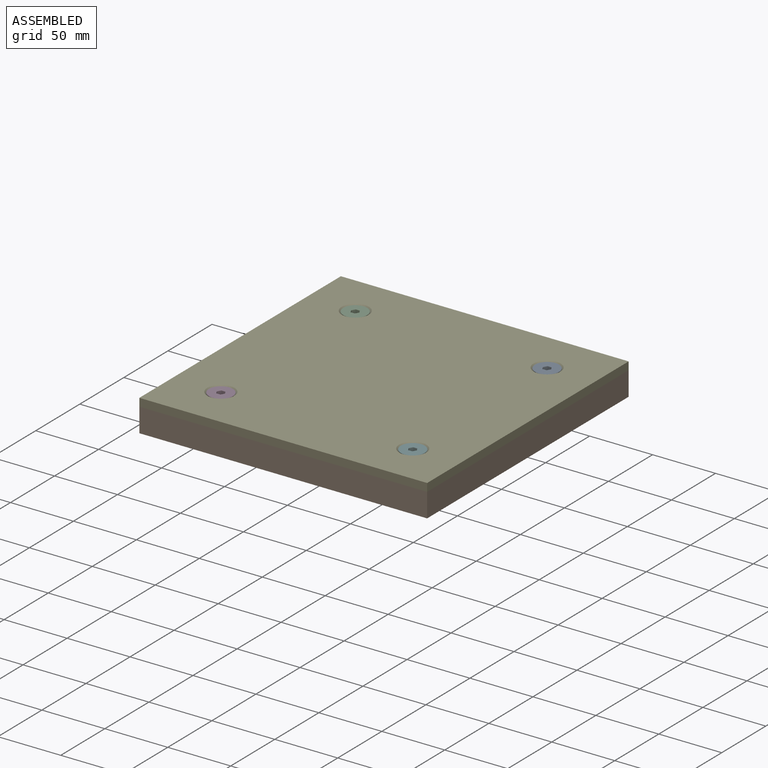
[diagram: assembled view]
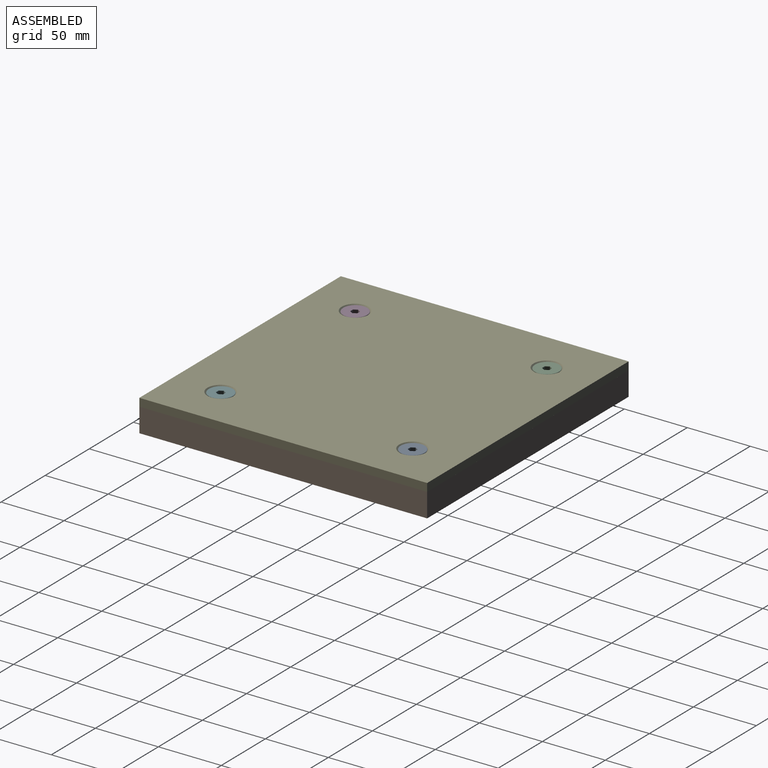
[diagram: assembled view, second angle]
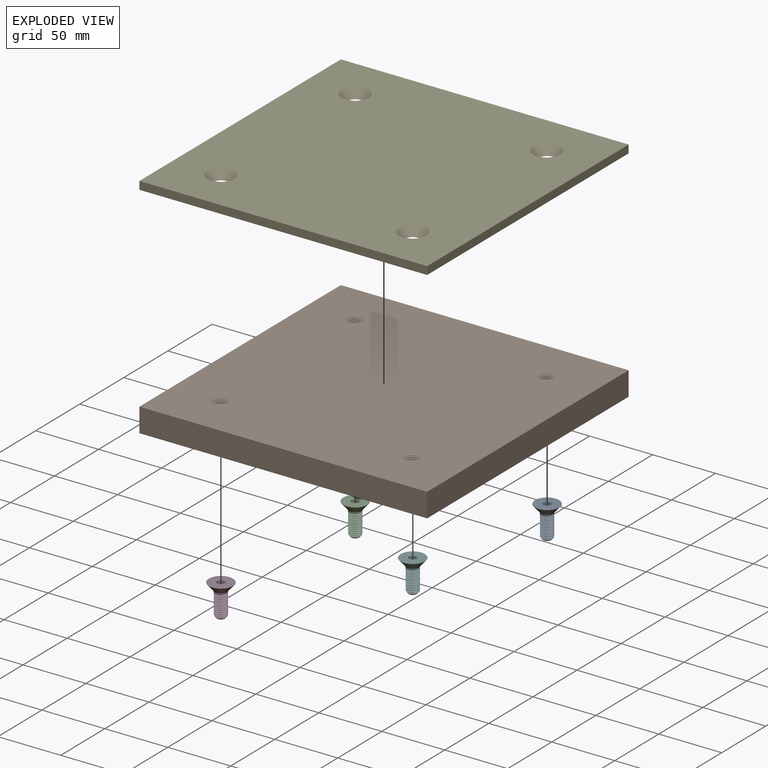
[diagram: exploded view]
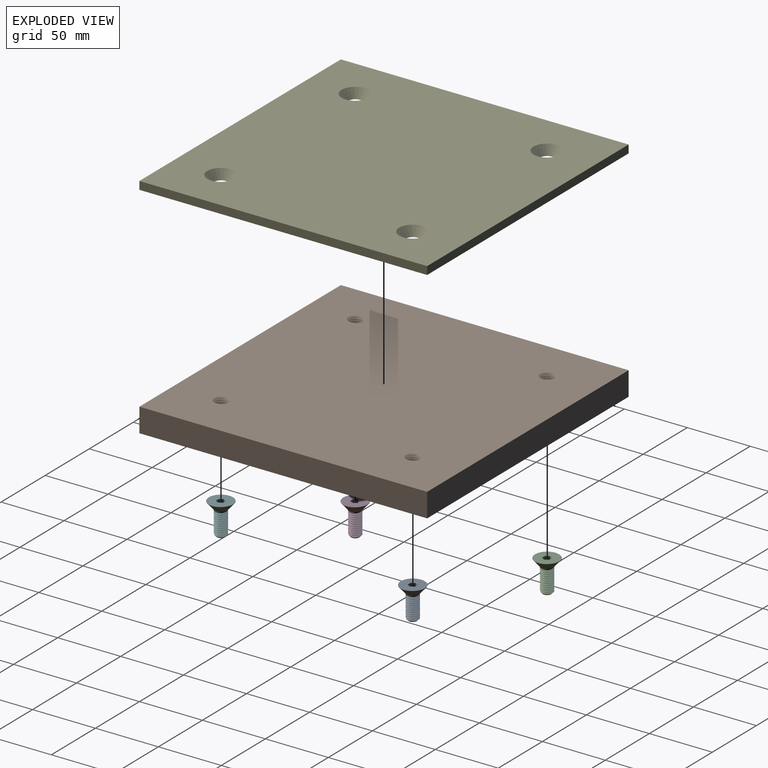
[diagram: exploded view, second angle]
ASSEMBLY  parts=6 mates=5
PART A: 22 faces, bbox 26.2x20.8x20.8 mm
  f0: plane 18.74x18.74mm, normal (-1,0,0), area 244.1mm2, adj f4,f16,f17,f18,f19,f20,f21
  f1: cylinder r=4.76mm len=17.87mm, axis (-1,0,0), area 72.1mm2, adj f3,f5,f6,f7,f8
  f2: plane 6.35x6.35mm, normal (1,0,0), area 31.7mm2, adj f5
  f3: cone r=9.56mm half-angle=41deg, axis (-1,0,0), area 329.4mm2, adj f1,f4,f8
  f4: torus R=9.37mm, axis (-1,0,0), area 34.9mm2, adj f0,f3
  f5: cone r=4.76mm half-angle=45deg, axis (-1,0,0), area 30.1mm2, adj f1,f2,f7,f8
  f6: plane 1.58x1.36mm, normal (0,-1,0.04), area 1.1mm2, adj f1,f7,f8
  f7: bspline ~19.57x11mm, area 441mm2, adj f1,f5,f6,f8
  f8: bspline ~19.57x11mm, area 462.1mm2, adj f1,f3,f5,f6,f7
  f9: plane 4.06x2.78mm, normal (0,-0.5,0.87), area 13mm2, adj f10,f14,f15,f17
  f10: plane 4.06x2.78mm, normal (0,0.5,0.87), area 13mm2, adj f9,f11,f15,f16
  f11: plane 4.06x3.21mm, normal (0,1,0), area 13mm2, adj f10,f12,f15,f18
  f12: plane 4.06x2.78mm, normal (0,0.5,-0.87), area 13mm2, adj f11,f13,f15,f20
  f13: plane 4.06x2.78mm, normal (0,-0.5,-0.87), area 13mm2, adj f12,f14,f15,f21
  f14: plane 4.06x3.21mm, normal (0,-1,0), area 13mm2, adj f9,f13,f15,f19
  f15: plane 6.42x5.56mm, normal (-1,0,0), area 26.7mm2, adj f9,f10,f11,f12,f13,f14
  f16: cylinder r=0.25mm len=3.16mm, axis (0,0.87,-0.5), area 1.3mm2, adj f0,f10,f17,f18
  f17: cylinder r=0.25mm len=3.16mm, axis (0,0.87,0.5), area 1.3mm2, adj f0,f9,f16,f19
  f18: cylinder r=0.25mm len=3.5mm, axis (0,0,-1), area 1.3mm2, adj f0,f11,f16,f20
  f19: cylinder r=0.25mm len=3.5mm, axis (0,0,1), area 1.3mm2, adj f0,f14,f17,f21
  f20: cylinder r=0.25mm len=3.16mm, axis (0,-0.87,-0.5), area 1.3mm2, adj f0,f12,f18,f21
  f21: cylinder r=0.25mm len=3.16mm, axis (0,-0.87,0.5), area 1.3mm2, adj f0,f13,f19,f20
PART B: 22 faces, bbox 229.7x229.7x22 mm
  f0: plane 229.02x229.02mm, normal (0,0,1), area 51818.1mm2, adj f1,f2,f3,f4,f5,f6,f7,f8
  f1: cylinder r=5.27mm len=19.05mm, axis (0,0,-1), area -11mm2, adj f0,f9,f19,f20,f21
  f2: cylinder r=5.27mm len=19.05mm, axis (0,0,-1), area -11mm2, adj f0,f9,f16,f17,f18
  f3: cylinder r=5.27mm len=19.05mm, axis (0,0,-1), area -11mm2, adj f0,f9,f13,f14,f15
  f4: cylinder r=5.27mm len=19.05mm, axis (0,0,-1), area -11mm2, adj f0,f9,f10,f11,f12
  f5: plane 228.6x19.05mm, normal (-1,0,0), area 4354.8mm2, adj f0,f6,f8,f9
  f6: plane 228.6x19.05mm, normal (0,-1,0), area 4354.8mm2, adj f0,f5,f7,f9
  f7: plane 228.6x19.05mm, normal (1,0,0), area 4354.8mm2, adj f0,f6,f8,f9
  f8: plane 228.6x19.05mm, normal (0,1,0), area 4354.8mm2, adj f0,f5,f7,f9
  f9: plane 229.7x229.7mm, normal (0,0,-1), area 51812mm2, adj f1,f2,f3,f4,f5,f6,f7,f8
  f10: bspline ~20.63x15.32mm, area 708.7mm2, adj f0,f4,f9,f11
  f11: bspline ~20.63x15.32mm, area 706mm2, adj f0,f4,f9,f10,f12
  f12: plane 0.5x0.31mm, normal (-0.95,-0.31,0), area 0.1mm2, adj f0,f4,f11
  f13: bspline ~20.63x15.32mm, area 708.7mm2, adj f0,f3,f9,f14
  f14: bspline ~20.63x15.32mm, area 706mm2, adj f0,f3,f9,f13,f15
  f15: plane 0.5x0.31mm, normal (-0.95,-0.31,0), area 0.1mm2, adj f0,f3,f14
  f16: bspline ~20.63x15.32mm, area 708.7mm2, adj f0,f2,f9,f17
  f17: bspline ~20.63x15.32mm, area 706mm2, adj f0,f2,f9,f16,f18
  f18: plane 0.5x0.31mm, normal (-0.95,-0.31,0), area 0.1mm2, adj f0,f2,f17
  f19: bspline ~20.63x15.32mm, area 708.7mm2, adj f0,f1,f9,f20
  f20: bspline ~20.63x15.32mm, area 706mm2, adj f0,f1,f9,f19,f21
  f21: plane 0.5x0.31mm, normal (-0.95,-0.31,0), area 0.1mm2, adj f0,f1,f20
PART C: same geometry as A
PART D: same geometry as A
PART E: 10 faces, bbox 228.6x6.4x228.6 mm
  f0: plane 228.6x6.35mm, normal (0,0,-1), area 1451.6mm2, adj f1,f3,f4,f5
  f1: plane 228.6x6.35mm, normal (1,0,0), area 1451.6mm2, adj f0,f2,f4,f5
  f2: plane 228.6x6.35mm, normal (0,0,1), area 1451.6mm2, adj f1,f3,f4,f5
  f3: plane 228.6x6.35mm, normal (-1,0,0), area 1451.6mm2, adj f0,f2,f4,f5
  f4: plane 228.6x228.6mm, normal (0,-1,0), area 50794.8mm2, adj f0,f1,f2,f3,f6,f7,f8,f9
  f5: plane 228.6x228.6mm, normal (0,1,0), area 51908.9mm2, adj f0,f1,f2,f3,f6,f7,f8,f9
  f6: cone r=5.27mm half-angle=41deg, axis (0,-1,0), area 424.5mm2, adj f4,f5
  f7: cone r=5.27mm half-angle=41deg, axis (0,-1,0), area 424.5mm2, adj f4,f5
  f8: cone r=5.27mm half-angle=41deg, axis (0,-1,0), area 424.5mm2, adj f4,f5
  f9: cone r=5.27mm half-angle=41deg, axis (0,-1,0), area 424.5mm2, adj f4,f5
PART F: same geometry as A
PLACE A rot(axis=(0.71,0,-0.71),180deg) t=(72.03,77.5,10.05)mm
PLACE B t=(-4.18,1.3,-9)mm
PLACE C rot(axis=(0.71,0,-0.71),180deg) t=(-80.37,77.5,10.05)mm
PLACE D rot(axis=(0.71,0,-0.71),180deg) t=(-80.37,-74.9,10.05)mm
PLACE E rot(axis=(-1,0,0),90deg) t=(-4.17,229.9,10.05)mm
PLACE F rot(axis=(0.71,0,-0.71),180deg) t=(72.03,-74.9,10.05)mm
MATE fastened F.f1 <-> E.f7  axis (0,0,1) through (72.03,-74.9,10.05)mm
MATE fastened E.f5 <-> B.f0  axis (0,0,-1) through (-4.17,1.3,10.05)mm
MATE fastened D.f1 <-> E.f8  axis (0,0,1) through (-80.37,-74.9,10.05)mm
MATE fastened A.f1 <-> E.f9  axis (0,0,1) through (72.03,77.5,10.05)mm
MATE fastened C.f1 <-> E.f6  axis (0,0,1) through (-80.37,77.5,10.05)mm
